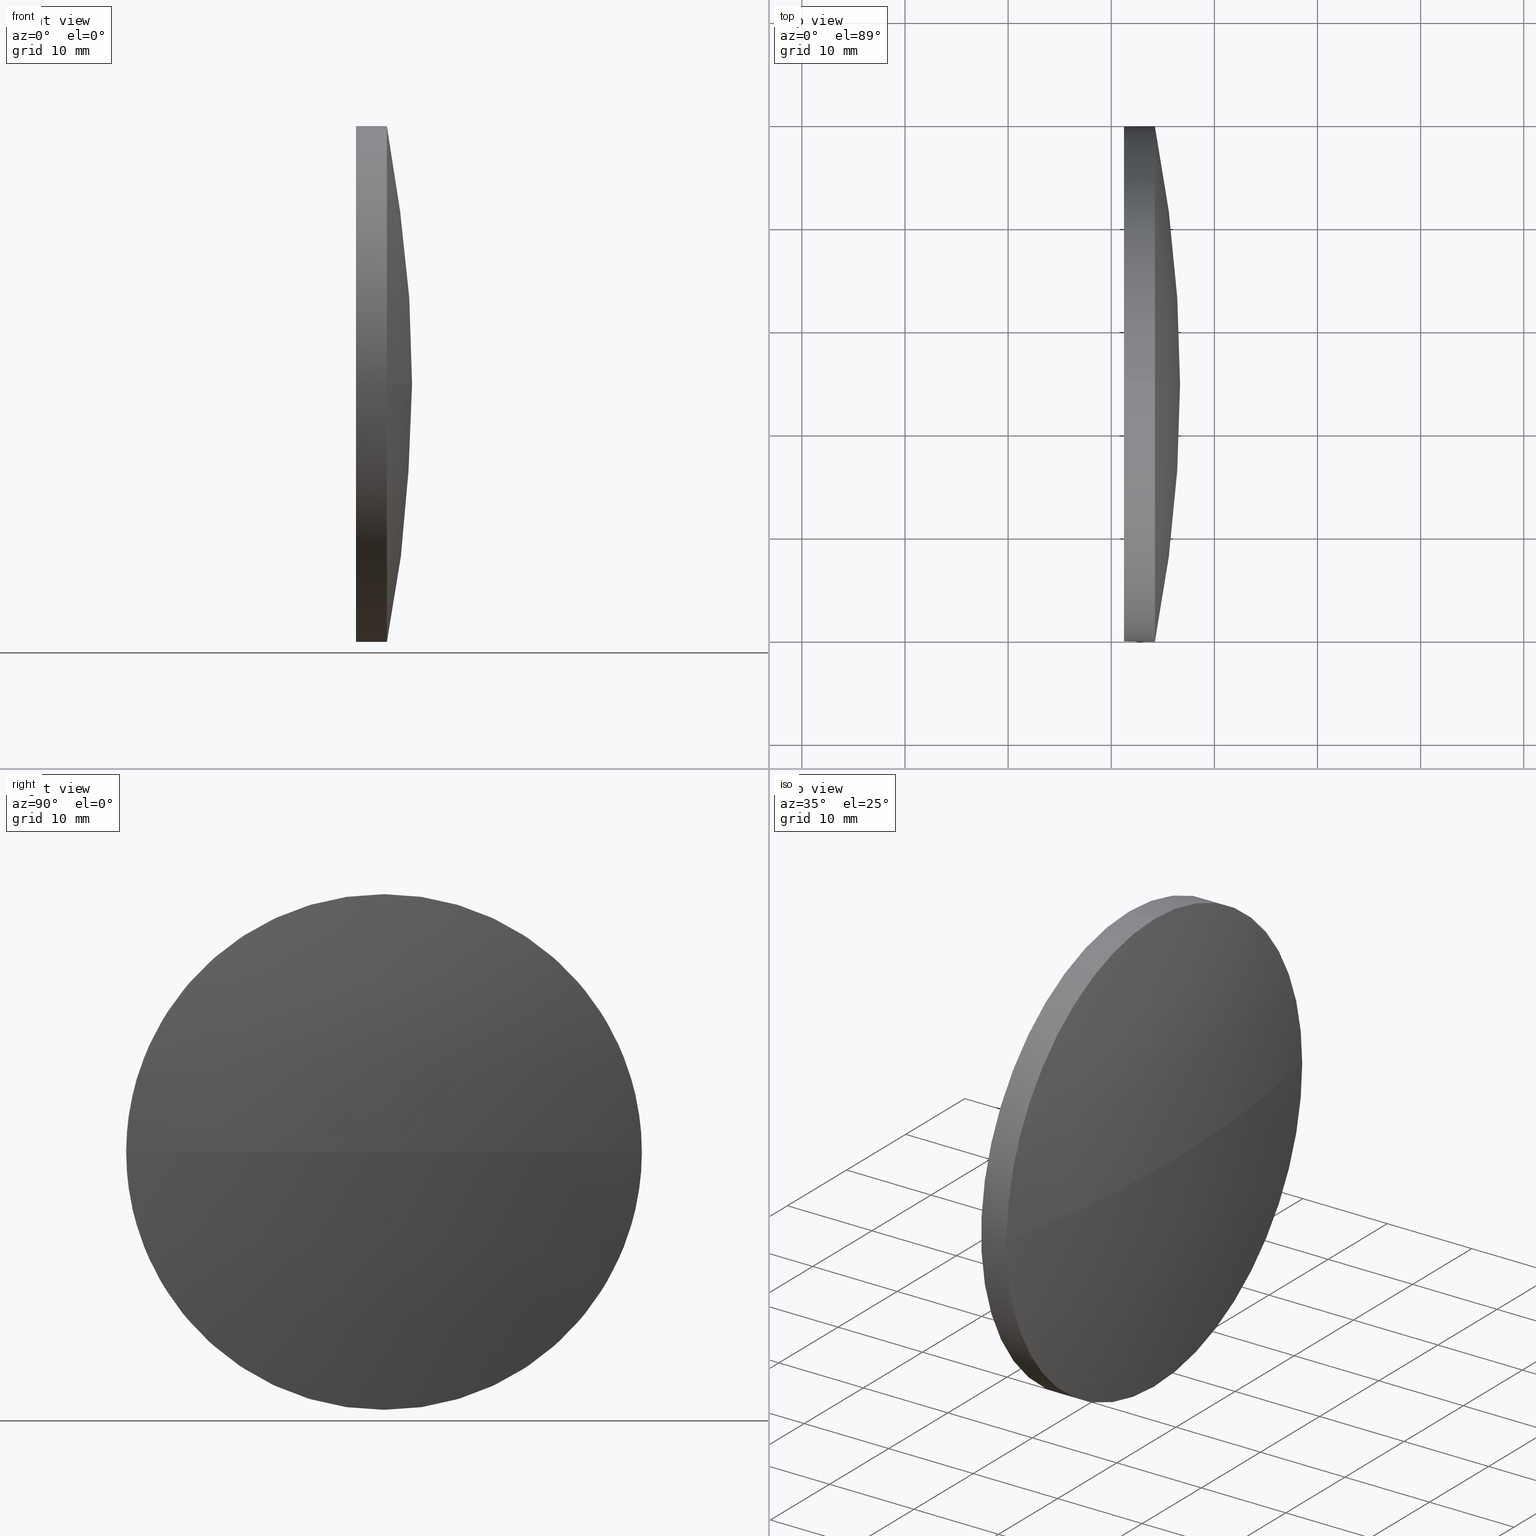
[diagram: canonical four-view strip — front | top / right | iso, engineering-drawing reading convention]
A machine part, canonical four-view strip (front | top / right | iso — engineering-drawing reading convention). The complete STEP part file that produces these views, byte-faithful:
ISO-10303-21;
HEADER;
FILE_DESCRIPTION (( 'STEP AP214' ),
    '1' );
FILE_NAME ('100242.STEP',
    '2019-05-28T08:24:26',
    ( '' ),
    ( '' ),
    'SwSTEP 2.0',
    'SolidWorks 2016',
    '' );
FILE_SCHEMA (( 'AUTOMOTIVE_DESIGN' ));
ENDSEC;

DATA;
#1 = DIRECTION ( 'NONE',  ( 1.000000000000000000, 0.0000000000000000000, 0.0000000000000000000 ) ) ;
#2 = CIRCLE ( 'NONE', #154, 24.99999999999999300 ) ;
#3 = SURFACE_STYLE_USAGE ( .BOTH. , #173 ) ;
#4 = CARTESIAN_POINT ( 'NONE',  ( 501.2313025247127000, 84.58581718796108400, 0.0000000000000000000 ) ) ;
#5 = MECHANICAL_DESIGN_GEOMETRIC_PRESENTATION_REPRESENTATION (  '', ( #35 ), #182 ) ;
#6 =( GEOMETRIC_REPRESENTATION_CONTEXT ( 3 ) GLOBAL_UNCERTAINTY_ASSIGNED_CONTEXT ( ( #52 ) ) GLOBAL_UNIT_ASSIGNED_CONTEXT ( ( #57, #174, #132 ) ) REPRESENTATION_CONTEXT ( 'NONE', 'WORKASPACE' ) );
#7 = ORIENTED_EDGE ( 'NONE', *, *, #175, .T. ) ;
#8 = CIRCLE ( 'NONE', #171, 129.2937704918034600 ) ;
#9 = AXIS2_PLACEMENT_3D ( 'NONE', #158, #55, #161 ) ;
#10 = ORIENTED_EDGE ( 'NONE', *, *, #108, .F. ) ;
#11 = CIRCLE ( 'NONE', #117, 24.99999999999999300 ) ;
#12 = ORIENTED_EDGE ( 'NONE', *, *, #148, .T. ) ;
#13 = CARTESIAN_POINT ( 'NONE',  ( 504.2313025247127000, 84.58581718796108400, 0.0000000000000000000 ) ) ;
#14 = DIRECTION ( 'NONE',  ( 0.0000000000000000000, 0.0000000000000000000, -1.000000000000000000 ) ) ;
#15 = EDGE_LOOP ( 'NONE', ( #51, #121, #12, #7, #172 ) ) ;
#16 = DIRECTION ( 'NONE',  ( -1.000000000000000000, -0.0000000000000000000, -0.0000000000000000000 ) ) ;
#17 = DIRECTION ( 'NONE',  ( 0.0000000000000000000, 1.224646799147353200E-016, -1.000000000000000000 ) ) ;
#18 = CIRCLE ( 'NONE', #152, 129.2937704918034600 ) ;
#19 = DIRECTION ( 'NONE',  ( -1.000000000000000000, -0.0000000000000000000, -0.0000000000000000000 ) ) ;
#20 = PRODUCT_DEFINITION ( 'δ֪', '', #80, #127 ) ;
#21 = CARTESIAN_POINT ( 'NONE',  ( 497.2595272355965800, 84.58581718796108400, -24.99999999999999300 ) ) ;
#22 = APPLICATION_CONTEXT ( 'automotive_design' ) ;
#23 = EDGE_CURVE ( 'NONE', #93, #87, #24, .T. ) ;
#24 = CIRCLE ( 'NONE', #56, 24.99999999999999300 ) ;
#25 = EDGE_LOOP ( 'NONE', ( #10, #79, #180, #44 ) ) ;
#26 = APPLICATION_PROTOCOL_DEFINITION ( 'draft international standard', 'automotive_design', 1998, #22 ) ;
#27 = AXIS2_PLACEMENT_3D ( 'NONE', #70, #1, #14 ) ;
#28 = COLOUR_RGB ( '',1.000000000000000000, 1.000000000000000000, 1.000000000000000000 ) ;
#29 = LINE ( 'NONE', #34, #131 ) ;
#30 = DIRECTION ( 'NONE',  ( 0.0000000000000000000, 0.0000000000000000000, 1.000000000000000000 ) ) ;
#31 = CIRCLE ( 'NONE', #40, 24.99999999999999300 ) ;
#32 = APPLICATION_CONTEXT ( 'automotive_design' ) ;
#33 = DIRECTION ( 'NONE',  ( -1.000000000000000000, -0.0000000000000000000, -0.0000000000000000000 ) ) ;
#34 = CARTESIAN_POINT ( 'NONE',  ( 497.2595272355965800, 84.58581718796108400, 24.99999999999999300 ) ) ;
#35 = STYLED_ITEM ( 'NONE', ( #91 ), #139 ) ;
#36 = CARTESIAN_POINT ( 'NONE',  ( 377.3775320329092400, 84.58581718796106900, 0.0000000000000000000 ) ) ;
#37 = VECTOR ( 'NONE', #130, 1000.000000000000000 ) ;
#38 = AXIS2_PLACEMENT_3D ( 'NONE', #129, #150, #107 ) ;
#39 = CARTESIAN_POINT ( 'NONE',  ( 377.3775320329092400, 84.58581718796106900, 0.0000000000000000000 ) ) ;
#40 = AXIS2_PLACEMENT_3D ( 'NONE', #141, #54, #170 ) ;
#41 = APPLICATION_PROTOCOL_DEFINITION ( 'draft international standard', 'automotive_design', 1998, #32 ) ;
#42 = DIRECTION ( 'NONE',  ( -0.0000000000000000000, 0.0000000000000000000, 1.000000000000000000 ) ) ;
#43 = UNCERTAINTY_MEASURE_WITH_UNIT (LENGTH_MEASURE( 1.000000000000000100E-005 ), #177, 'distance_accuracy_value', 'NONE');
#44 = ORIENTED_EDGE ( 'NONE', *, *, #94, .F. ) ;
#45 = CARTESIAN_POINT ( 'NONE',  ( 504.2313025247127000, 84.58581718796108400, 24.99999999999999300 ) ) ;
#46 = DIRECTION ( 'NONE',  ( -1.000000000000000000, -0.0000000000000000000, -0.0000000000000000000 ) ) ;
#47 = ADVANCED_FACE ( 'NONE', ( #138 ), #145, .T. ) ;
#48 = ADVANCED_FACE ( 'NONE', ( #85 ), #126, .F. ) ;
#49 = SURFACE_STYLE_FILL_AREA ( #143 ) ;
#50 = ORIENTED_EDGE ( 'NONE', *, *, #66, .T. ) ;
#51 = ORIENTED_EDGE ( 'NONE', *, *, #163, .F. ) ;
#52 = UNCERTAINTY_MEASURE_WITH_UNIT (LENGTH_MEASURE( 1.000000000000000100E-005 ), #57, 'distance_accuracy_value', 'NONE');
#53 = ORIENTED_EDGE ( 'NONE', *, *, #66, .F. ) ;
#54 = DIRECTION ( 'NONE',  ( -1.000000000000000000, -0.0000000000000000000, -0.0000000000000000000 ) ) ;
#55 = DIRECTION ( 'NONE',  ( -0.0000000000000000000, 0.0000000000000000000, -1.000000000000000000 ) ) ;
#56 = AXIS2_PLACEMENT_3D ( 'NONE', #83, #128, #186 ) ;
#57 =( LENGTH_UNIT ( ) NAMED_UNIT ( * ) SI_UNIT ( .MILLI., .METRE. ) );
#58 = FILL_AREA_STYLE ('',( #98 ) ) ;
#59 = DIRECTION ( 'NONE',  ( 1.000000000000000000, 0.0000000000000000000, 0.0000000000000000000 ) ) ;
#60 = AXIS2_PLACEMENT_3D ( 'NONE', #146, #118, #99 ) ;
#61 = STYLED_ITEM ( 'NONE', ( #140 ), #102 ) ;
#62 = UNCERTAINTY_MEASURE_WITH_UNIT (LENGTH_MEASURE( 1.000000000000000100E-005 ), #86, 'distance_accuracy_value', 'NONE');
#63 = AXIS2_PLACEMENT_3D ( 'NONE', #162, #46, #75 ) ;
#64 = ORIENTED_EDGE ( 'NONE', *, *, #148, .F. ) ;
#65 = FACE_OUTER_BOUND ( 'NONE', #15, .T. ) ;
#66 = EDGE_CURVE ( 'NONE', #159, #109, #11, .T. ) ;
#67 = EDGE_LOOP ( 'NONE', ( #68, #97, #53, #64 ) ) ;
#68 = ORIENTED_EDGE ( 'NONE', *, *, #78, .F. ) ;
#69 = MECHANICAL_DESIGN_GEOMETRIC_PRESENTATION_REPRESENTATION (  '', ( #61 ), #101 ) ;
#70 = CARTESIAN_POINT ( 'NONE',  ( 501.2313025247127000, 84.58581718796108400, 0.0000000000000000000 ) ) ;
#71 = DIRECTION ( 'NONE',  ( 0.0000000000000000000, 0.0000000000000000000, 1.000000000000000000 ) ) ;
#72 = SURFACE_STYLE_USAGE ( .BOTH. , #103 ) ;
#73 = CLOSED_SHELL ( 'NONE', ( #176, #137, #47, #135, #48 ) ) ;
#74 = PRODUCT_RELATED_PRODUCT_CATEGORY ( 'part', '', ( #105 ) ) ;
#75 = DIRECTION ( 'NONE',  ( 0.0000000000000000000, 0.0000000000000000000, 1.000000000000000000 ) ) ;
#76 = FACE_OUTER_BOUND ( 'NONE', #25, .T. ) ;
#77 = DIRECTION ( 'NONE',  ( -1.000000000000000000, -0.0000000000000000000, -0.0000000000000000000 ) ) ;
#78 = EDGE_CURVE ( 'NONE', #153, #115, #8, .T. ) ;
#79 = ORIENTED_EDGE ( 'NONE', *, *, #78, .T. ) ;
#80 = PRODUCT_DEFINITION_FORMATION_WITH_SPECIFIED_SOURCE ( '�κ�', '', #105, .NOT_KNOWN. ) ;
#81 = ORIENTED_EDGE ( 'NONE', *, *, #23, .T. ) ;
#82 = AXIS2_PLACEMENT_3D ( 'NONE', #39, #156, #184 ) ;
#83 = CARTESIAN_POINT ( 'NONE',  ( 501.2313025247127000, 84.58581718796108400, 0.0000000000000000000 ) ) ;
#84 = DIRECTION ( 'NONE',  ( 0.0000000000000000000, 0.0000000000000000000, 1.000000000000000000 ) ) ;
#85 = FACE_OUTER_BOUND ( 'NONE', #122, .T. ) ;
#86 =( LENGTH_UNIT ( ) NAMED_UNIT ( * ) SI_UNIT ( .MILLI., .METRE. ) );
#87 = VERTEX_POINT ( 'NONE', #144 ) ;
#88 =( NAMED_UNIT ( * ) PLANE_ANGLE_UNIT ( ) SI_UNIT ( $, .RADIAN. ) );
#89 =( NAMED_UNIT ( * ) SI_UNIT ( $, .STERADIAN. ) SOLID_ANGLE_UNIT ( ) );
#90 = ORIENTED_EDGE ( 'NONE', *, *, #94, .T. ) ;
#91 = PRESENTATION_STYLE_ASSIGNMENT (( #72 ) ) ;
#92 = FACE_OUTER_BOUND ( 'NONE', #155, .T. ) ;
#93 = VERTEX_POINT ( 'NONE', #123 ) ;
#94 = EDGE_CURVE ( 'NONE', #109, #104, #31, .T. ) ;
#95 = CARTESIAN_POINT ( 'NONE',  ( 504.2313025247127000, 84.58581718796108400, -24.99999999999999300 ) ) ;
#96 = CARTESIAN_POINT ( 'NONE',  ( 377.3775320329092400, 84.58581718796106900, 0.0000000000000000000 ) ) ;
#97 = ORIENTED_EDGE ( 'NONE', *, *, #108, .T. ) ;
#98 = FILL_AREA_STYLE_COLOUR ( '', #116 ) ;
#99 = DIRECTION ( 'NONE',  ( 0.0000000000000000000, 0.0000000000000000000, 1.000000000000000000 ) ) ;
#100 =( NAMED_UNIT ( * ) SI_UNIT ( $, .STERADIAN. ) SOLID_ANGLE_UNIT ( ) );
#101 =( GEOMETRIC_REPRESENTATION_CONTEXT ( 3 ) GLOBAL_UNCERTAINTY_ASSIGNED_CONTEXT ( ( #62 ) ) GLOBAL_UNIT_ASSIGNED_CONTEXT ( ( #86, #136, #89 ) ) REPRESENTATION_CONTEXT ( 'NONE', 'WORKASPACE' ) );
#102 = MANIFOLD_SOLID_BREP ( '��ת1', #73 ) ;
#103 = SURFACE_SIDE_STYLE ('',( #181 ) ) ;
#104 = VERTEX_POINT ( 'NONE', #95 ) ;
#105 = PRODUCT ( '100242', '100242', '', ( #164 ) ) ;
#106 = DIRECTION ( 'NONE',  ( 0.0000000000000000000, 0.0000000000000000000, 1.000000000000000000 ) ) ;
#107 = DIRECTION ( 'NONE',  ( 1.000000000000000000, 0.0000000000000000000, 0.0000000000000000000 ) ) ;
#108 = EDGE_CURVE ( 'NONE', #153, #109, #18, .T. ) ;
#109 = VERTEX_POINT ( 'NONE', #124 ) ;
#110 = CYLINDRICAL_SURFACE ( 'NONE', #63, 24.99999999999999300 ) ;
#111 = SHAPE_DEFINITION_REPRESENTATION ( #113, #139 ) ;
#112 = SPHERICAL_SURFACE ( 'NONE', #9, 129.2937704918034600 ) ;
#113 = PRODUCT_DEFINITION_SHAPE ( 'NONE', 'NONE',  #20 ) ;
#114 = FILL_AREA_STYLE_COLOUR ( '', #28 ) ;
#115 = VERTEX_POINT ( 'NONE', #147 ) ;
#116 = COLOUR_RGB ( '',1.000000000000000000, 1.000000000000000000, 1.000000000000000000 ) ;
#117 = AXIS2_PLACEMENT_3D ( 'NONE', #13, #16, #30 ) ;
#118 = DIRECTION ( 'NONE',  ( -1.000000000000000000, -0.0000000000000000000, -0.0000000000000000000 ) ) ;
#119 = ORIENTED_EDGE ( 'NONE', *, *, #163, .T. ) ;
#120 = PRESENTATION_LAYER_ASSIGNMENT (  '', '', ( #61 ) ) ;
#121 = ORIENTED_EDGE ( 'NONE', *, *, #166, .T. ) ;
#122 = EDGE_LOOP ( 'NONE', ( #169, #81 ) ) ;
#123 = CARTESIAN_POINT ( 'NONE',  ( 501.2313025247127000, 84.58581718796108400, -24.99999999999999300 ) ) ;
#124 = CARTESIAN_POINT ( 'NONE',  ( 504.2313025247127000, 109.5858171879610400, 0.0000000000000000000 ) ) ;
#125 = ORIENTED_EDGE ( 'NONE', *, *, #165, .F. ) ;
#126 = PLANE ( 'NONE',  #27 ) ;
#127 = PRODUCT_DEFINITION_CONTEXT ( 'detailed design', #22, 'design' ) ;
#128 = DIRECTION ( 'NONE',  ( -1.000000000000000000, -0.0000000000000000000, -0.0000000000000000000 ) ) ;
#129 = CARTESIAN_POINT ( 'NONE',  ( 0.0000000000000000000, 0.0000000000000000000, 0.0000000000000000000 ) ) ;
#130 = DIRECTION ( 'NONE',  ( -1.000000000000000000, -0.0000000000000000000, -0.0000000000000000000 ) ) ;
#131 = VECTOR ( 'NONE', #33, 1000.000000000000000 ) ;
#132 =( NAMED_UNIT ( * ) SI_UNIT ( $, .STERADIAN. ) SOLID_ANGLE_UNIT ( ) );
#133 = PRESENTATION_LAYER_ASSIGNMENT (  '', '', ( #35 ) ) ;
#134 = CARTESIAN_POINT ( 'NONE',  ( 506.6713025247127000, 84.58581718796108400, 0.0000000000000000000 ) ) ;
#135 = ADVANCED_FACE ( 'NONE', ( #65 ), #110, .T. ) ;
#136 =( NAMED_UNIT ( * ) PLANE_ANGLE_UNIT ( ) SI_UNIT ( $, .RADIAN. ) );
#137 = ADVANCED_FACE ( 'NONE', ( #76 ), #112, .T. ) ;
#138 = FACE_OUTER_BOUND ( 'NONE', #67, .T. ) ;
#139 = ADVANCED_BREP_SHAPE_REPRESENTATION ( '100242', ( #102, #38 ), #6 ) ;
#140 = PRESENTATION_STYLE_ASSIGNMENT (( #3 ) ) ;
#141 = CARTESIAN_POINT ( 'NONE',  ( 504.2313025247127000, 84.58581718796108400, 0.0000000000000000000 ) ) ;
#142 = AXIS2_PLACEMENT_3D ( 'NONE', #149, #77, #84 ) ;
#143 = FILL_AREA_STYLE ('',( #114 ) ) ;
#144 = CARTESIAN_POINT ( 'NONE',  ( 501.2313025247127000, 84.58581718796108400, 24.99999999999999300 ) ) ;
#145 = SPHERICAL_SURFACE ( 'NONE', #82, 129.2937704918034600 ) ;
#146 = CARTESIAN_POINT ( 'NONE',  ( 497.2595272355965800, 84.58581718796108400, 0.0000000000000000000 ) ) ;
#147 = CARTESIAN_POINT ( 'NONE',  ( 504.2313025247127000, 59.58581718796111200, -3.061616997868378700E-015 ) ) ;
#148 = EDGE_CURVE ( 'NONE', #115, #159, #179, .T. ) ;
#149 = CARTESIAN_POINT ( 'NONE',  ( 504.2313025247127000, 84.58581718796108400, 0.0000000000000000000 ) ) ;
#150 = DIRECTION ( 'NONE',  ( 0.0000000000000000000, 0.0000000000000000000, 1.000000000000000000 ) ) ;
#151 = LINE ( 'NONE', #21, #37 ) ;
#152 = AXIS2_PLACEMENT_3D ( 'NONE', #36, #42, #59 ) ;
#153 = VERTEX_POINT ( 'NONE', #134 ) ;
#154 = AXIS2_PLACEMENT_3D ( 'NONE', #4, #19, #106 ) ;
#155 = EDGE_LOOP ( 'NONE', ( #90, #119, #125, #183, #50 ) ) ;
#156 = DIRECTION ( 'NONE',  ( -0.0000000000000000000, 0.0000000000000000000, -1.000000000000000000 ) ) ;
#157 = CARTESIAN_POINT ( 'NONE',  ( 504.2313025247127000, 84.58581718796108400, 0.0000000000000000000 ) ) ;
#158 = CARTESIAN_POINT ( 'NONE',  ( 377.3775320329092400, 84.58581718796106900, 0.0000000000000000000 ) ) ;
#159 = VERTEX_POINT ( 'NONE', #45 ) ;
#160 = CYLINDRICAL_SURFACE ( 'NONE', #60, 24.99999999999999300 ) ;
#161 = DIRECTION ( 'NONE',  ( 0.0000000000000000000, 1.000000000000000000, 0.0000000000000000000 ) ) ;
#162 = CARTESIAN_POINT ( 'NONE',  ( 497.2595272355965800, 84.58581718796108400, 0.0000000000000000000 ) ) ;
#163 = EDGE_CURVE ( 'NONE', #104, #93, #151, .T. ) ;
#164 = PRODUCT_CONTEXT ( 'NONE', #32, 'mechanical' ) ;
#165 = EDGE_CURVE ( 'NONE', #87, #93, #2, .T. ) ;
#166 = EDGE_CURVE ( 'NONE', #104, #115, #167, .T. ) ;
#167 = CIRCLE ( 'NONE', #185, 24.99999999999999300 ) ;
#168 = DIRECTION ( 'NONE',  ( 0.0000000000000000000, 1.000000000000000000, 1.224646799147353200E-016 ) ) ;
#169 = ORIENTED_EDGE ( 'NONE', *, *, #165, .T. ) ;
#170 = DIRECTION ( 'NONE',  ( 0.0000000000000000000, 0.0000000000000000000, 1.000000000000000000 ) ) ;
#171 = AXIS2_PLACEMENT_3D ( 'NONE', #96, #17, #168 ) ;
#172 = ORIENTED_EDGE ( 'NONE', *, *, #23, .F. ) ;
#173 = SURFACE_SIDE_STYLE ('',( #49 ) ) ;
#174 =( NAMED_UNIT ( * ) PLANE_ANGLE_UNIT ( ) SI_UNIT ( $, .RADIAN. ) );
#175 = EDGE_CURVE ( 'NONE', #159, #87, #29, .T. ) ;
#176 = ADVANCED_FACE ( 'NONE', ( #92 ), #160, .T. ) ;
#177 =( LENGTH_UNIT ( ) NAMED_UNIT ( * ) SI_UNIT ( .MILLI., .METRE. ) );
#178 = DIRECTION ( 'NONE',  ( -1.000000000000000000, -0.0000000000000000000, -0.0000000000000000000 ) ) ;
#179 = CIRCLE ( 'NONE', #142, 24.99999999999999300 ) ;
#180 = ORIENTED_EDGE ( 'NONE', *, *, #166, .F. ) ;
#181 = SURFACE_STYLE_FILL_AREA ( #58 ) ;
#182 =( GEOMETRIC_REPRESENTATION_CONTEXT ( 3 ) GLOBAL_UNCERTAINTY_ASSIGNED_CONTEXT ( ( #43 ) ) GLOBAL_UNIT_ASSIGNED_CONTEXT ( ( #177, #88, #100 ) ) REPRESENTATION_CONTEXT ( 'NONE', 'WORKASPACE' ) );
#183 = ORIENTED_EDGE ( 'NONE', *, *, #175, .F. ) ;
#184 = DIRECTION ( 'NONE',  ( 0.0000000000000000000, 1.000000000000000000, 0.0000000000000000000 ) ) ;
#185 = AXIS2_PLACEMENT_3D ( 'NONE', #157, #178, #71 ) ;
#186 = DIRECTION ( 'NONE',  ( 0.0000000000000000000, 0.0000000000000000000, 1.000000000000000000 ) ) ;
ENDSEC;
END-ISO-10303-21;
